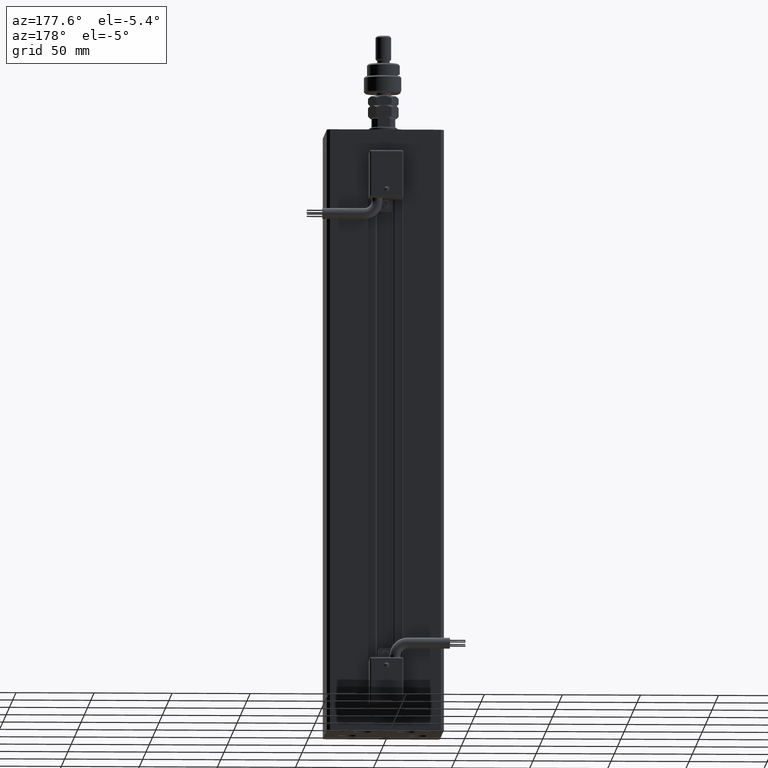
[diagram: clean part render]
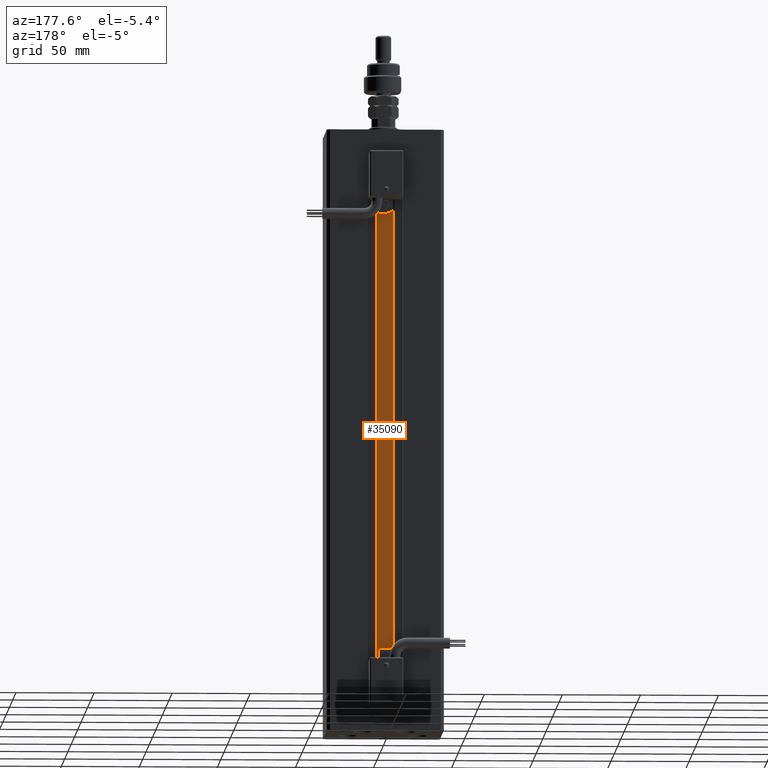
[diagram: same view with one face highlighted and labeled with its STEP entity id]
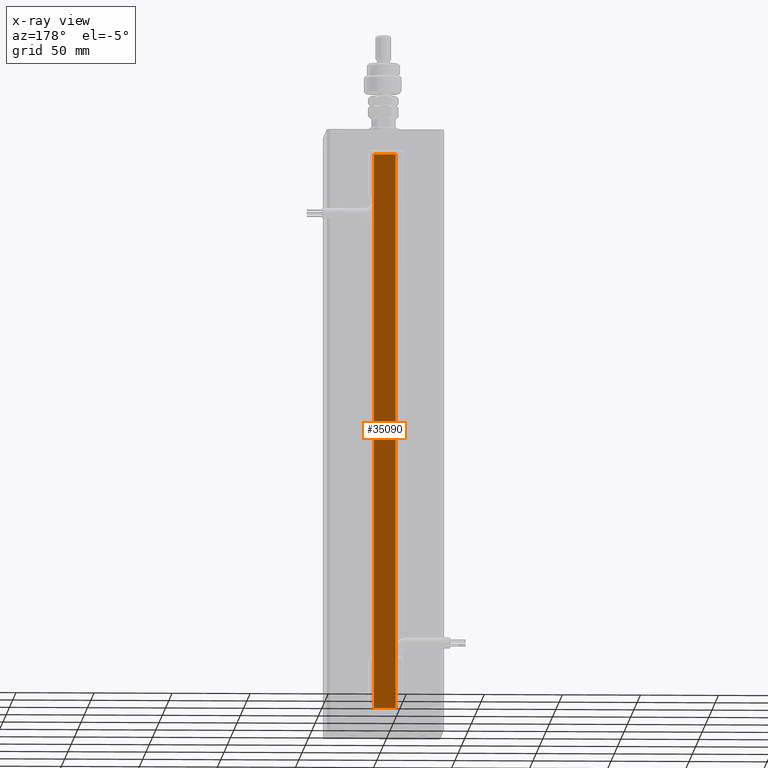
[diagram: x-ray of the same camera — body ghosted, the highlighted face saturated]
A machine part, auxiliary view. The second image highlights one B-rep face of the part: STEP entity #35090.
The next image is the same camera in x-ray: the body ghosted, the highlighted face saturated — about 0% of this face is hidden behind the body in this view.
In plain terms, the highlighted planar face has unit normal (0, -1, 0).
Its self-contained STEP definition (entity closure, byte-faithful):
#1363 = EDGE_CURVE ( 'NONE', #49872, #55391, #45839, .T. ) ;
#2718 = LINE ( 'NONE', #3294, #54157 ) ;
#3294 = CARTESIAN_POINT ( 'NONE',  ( 6.876153656360466826, 21.99999999999986855, 0.000000000000000000 ) ) ;
#3332 = EDGE_LOOP ( 'NONE', ( #22417, #52198, #4403, #13404 ) ) ;
#4403 = ORIENTED_EDGE ( 'NONE', *, *, #13214, .T. ) ;
#6500 = DIRECTION ( 'NONE',  ( 0.000000000000000000, 0.000000000000000000, -1.000000000000000000 ) ) ;
#8341 = LINE ( 'NONE', #44442, #51207 ) ;
#10620 = DIRECTION ( 'NONE',  ( 1.000000000000000000, -0.000000000000000000, -0.000000000000000000 ) ) ;
#13172 = DIRECTION ( 'NONE',  ( -1.000000000000000000, 0.000000000000000000, 0.000000000000000000 ) ) ;
#13214 = EDGE_CURVE ( 'NONE', #49872, #46102, #8341, .T. ) ;
#13404 = ORIENTED_EDGE ( 'NONE', *, *, #36322, .F. ) ;
#14023 = CARTESIAN_POINT ( 'NONE',  ( 0.000000000000000000, 21.99999999999986855, 356.0000000000000000 ) ) ;
#16383 = VECTOR ( 'NONE', #10620, 1000.000000000000000 ) ;
#20474 = DIRECTION ( 'NONE',  ( -0.000000000000000000, -0.000000000000000000, 1.000000000000000000 ) ) ;
#21087 = CARTESIAN_POINT ( 'NONE',  ( 6.876153656360466826, 21.99999999999986855, 356.0000000000000000 ) ) ;
#22417 = ORIENTED_EDGE ( 'NONE', *, *, #29428, .F. ) ;
#24798 = CARTESIAN_POINT ( 'NONE',  ( 6.876153656360466826, 21.99999999999986855, 0.000000000000000000 ) ) ;
#26808 = VERTEX_POINT ( 'NONE', #21087 ) ;
#27769 = CARTESIAN_POINT ( 'NONE',  ( 6.876153656360466826, 21.99999999999986855, 0.000000000000000000 ) ) ;
#29428 = EDGE_CURVE ( 'NONE', #55391, #26808, #2718, .T. ) ;
#32874 = VECTOR ( 'NONE', #13172, 1000.000000000000000 ) ;
#33825 = CARTESIAN_POINT ( 'NONE',  ( -6.876153656360466826, 21.99999999999986855, 356.0000000000000000 ) ) ;
#35090 = ADVANCED_FACE ( 'NONE', ( #41708 ), #54869, .F. ) ;
#35841 = CARTESIAN_POINT ( 'NONE',  ( -6.876153656360466826, 21.99999999999986855, 0.000000000000000000 ) ) ;
#36322 = EDGE_CURVE ( 'NONE', #26808, #46102, #53924, .T. ) ;
#36762 = DIRECTION ( 'NONE',  ( 0.000000000000000000, -1.000000000000000000, -0.000000000000000000 ) ) ;
#40273 = AXIS2_PLACEMENT_3D ( 'NONE', #27769, #36762, #6500 ) ;
#41179 = CARTESIAN_POINT ( 'NONE',  ( 6.876153656360466826, 21.99999999999986855, 0.000000000000000000 ) ) ;
#41708 = FACE_OUTER_BOUND ( 'NONE', #3332, .T. ) ;
#44442 = CARTESIAN_POINT ( 'NONE',  ( -6.876153656360466826, 21.99999999999986855, 0.000000000000000000 ) ) ;
#45839 = LINE ( 'NONE', #41179, #16383 ) ;
#46102 = VERTEX_POINT ( 'NONE', #33825 ) ;
#48802 = DIRECTION ( 'NONE',  ( -0.000000000000000000, -0.000000000000000000, 1.000000000000000000 ) ) ;
#49872 = VERTEX_POINT ( 'NONE', #35841 ) ;
#51207 = VECTOR ( 'NONE', #48802, 1000.000000000000000 ) ;
#52198 = ORIENTED_EDGE ( 'NONE', *, *, #1363, .F. ) ;
#53924 = LINE ( 'NONE', #14023, #32874 ) ;
#54157 = VECTOR ( 'NONE', #20474, 1000.000000000000000 ) ;
#54869 = PLANE ( 'NONE',  #40273 ) ;
#55391 = VERTEX_POINT ( 'NONE', #24798 ) ;